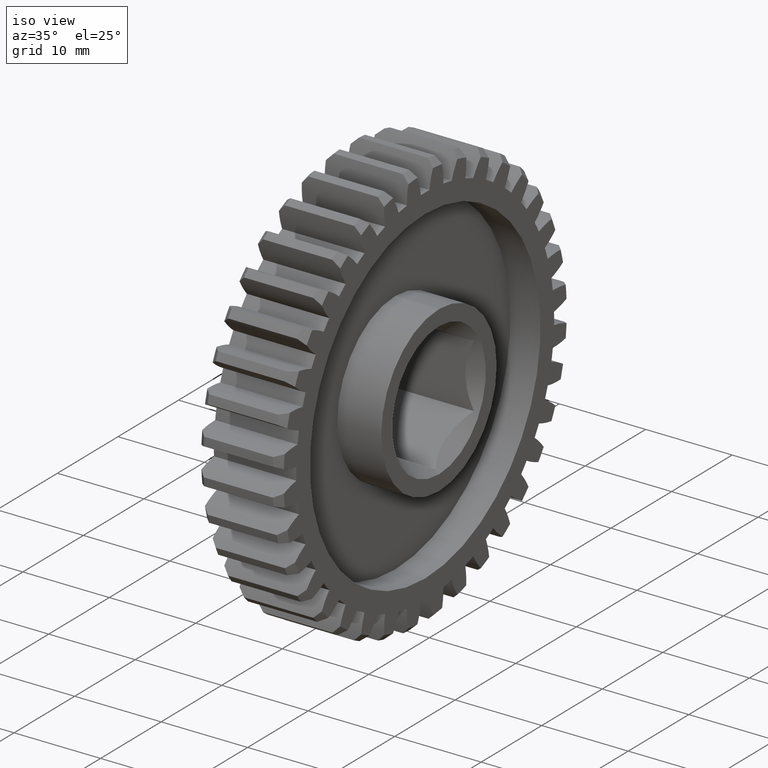
[diagram: clean part render]
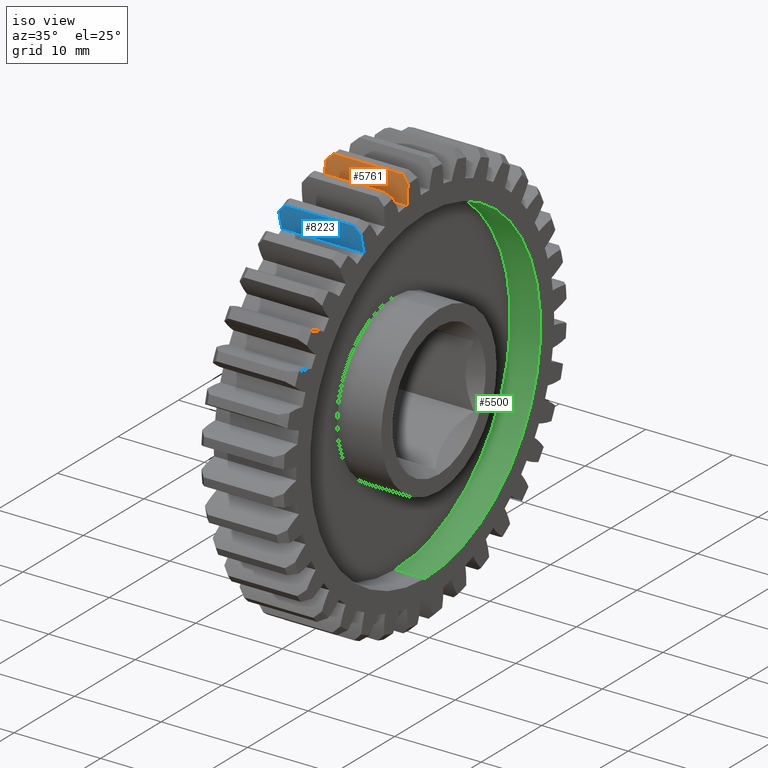
[diagram: same view with three faces highlighted in distinct colors, each labeled with its STEP entity id]
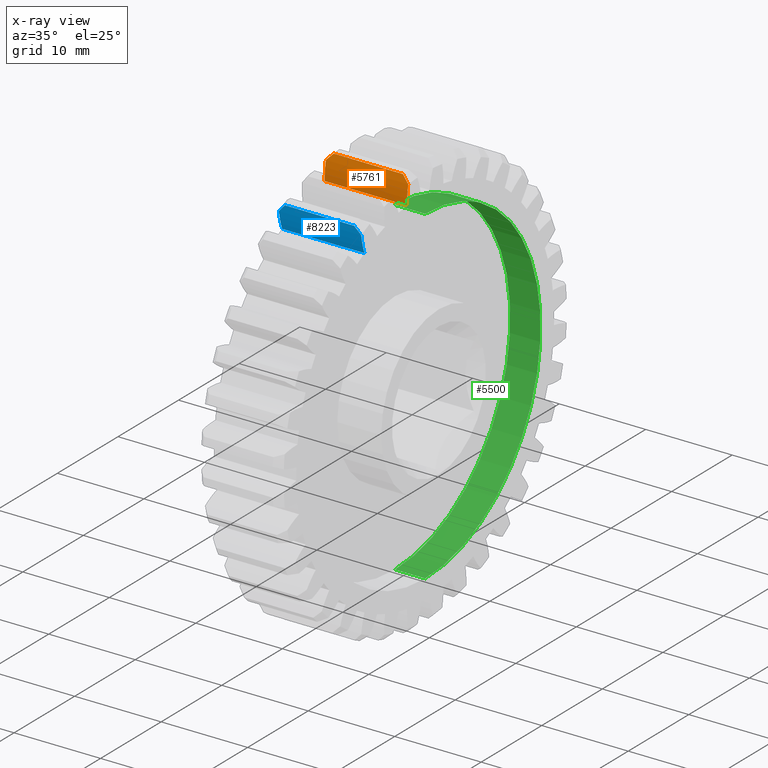
[diagram: x-ray of the same camera — body ghosted, the three highlighted faces saturated]
A machine part, iso view with three faces highlighted in distinct colors.
The next image is the same camera in x-ray (body ghosted, the three faces saturated) — at least one of them is partly hidden behind the body in this view.
Their STEP definitions:

[orange] entity #5761 — the highlighted cylindrical surface (partial cylindrical patch) has radius 9.144 mm, axis along (-1, 0, 0).
#299 = ORIENTED_EDGE ( 'NONE', *, *, #4477, .T. ) ;
#393 = B_SPLINE_CURVE_WITH_KNOTS ( 'NONE', 3,
 ( #2715, #2797, #8612, #8008 ),
 .UNSPECIFIED., .F., .F.,
 ( 4, 4 ),
 ( 3.903127820947815962E-18, 0.001117852206098120249 ),
 .UNSPECIFIED. ) ;
#492 = DIRECTION ( 'NONE',  ( 0.000000000000000000, 0.000000000000000000, 1.000000000000000000 ) ) ;
#592 = CARTESIAN_POINT ( 'NONE',  ( 0.000000000000000000, -0.1101551744072880173, 0.9133815399663494095 ) ) ;
#661 = CARTESIAN_POINT ( 'NONE',  ( 0.3750000000000000555, -0.1182412636767840586, 0.8296161784609298318 ) ) ;
#898 = CARTESIAN_POINT ( 'NONE',  ( 0.3750000000000000555, 0.2416800010159008416, 0.8371450045326488398 ) ) ;
#958 = CARTESIAN_POINT ( 'NONE',  ( 0.3750000000000000555, -0.1101551744072880312, 0.9133815399663496315 ) ) ;
#972 = ORIENTED_EDGE ( 'NONE', *, *, #1091, .T. ) ;
#1017 = DIRECTION ( 'NONE',  ( -1.000000000000000000, 0.000000000000000000, 0.000000000000000000 ) ) ;
#1060 = LINE ( 'NONE', #2322, #3540 ) ;
#1091 = EDGE_CURVE ( 'NONE', #4074, #5995, #1060, .T. ) ;
#1229 = CARTESIAN_POINT ( 'NONE',  ( 0.000000000000000000, -0.1182412636767840586, 0.8296161784609298318 ) ) ;
#1421 = VERTEX_POINT ( 'NONE', #1868 ) ;
#1631 = ORIENTED_EDGE ( 'NONE', *, *, #2276, .T. ) ;
#1755 = DIRECTION ( 'NONE',  ( -1.000000000000000000, 0.000000000000000000, 0.000000000000000000 ) ) ;
#1813 = ORIENTED_EDGE ( 'NONE', *, *, #2444, .T. ) ;
#1868 = CARTESIAN_POINT ( 'NONE',  ( 0.000000000000000000, -0.1101551744072880173, 0.9133815399663494095 ) ) ;
#2276 = EDGE_CURVE ( 'NONE', #6651, #2302, #3125, .T. ) ;
#2302 = VERTEX_POINT ( 'NONE', #4994 ) ;
#2322 = CARTESIAN_POINT ( 'NONE',  ( 0.3750000000000000555, -0.1182412636767840863, 0.8296161784609298318 ) ) ;
#2444 = EDGE_CURVE ( 'NONE', #2302, #1421, #2895, .T. ) ;
#2715 = CARTESIAN_POINT ( 'NONE',  ( 0.3750000000000000555, -0.1101551744072880312, 0.9133815399663496315 ) ) ;
#2797 = CARTESIAN_POINT ( 'NONE',  ( 0.3649188789787016218, -0.1078959033958250824, 0.9238081813152061450 ) ) ;
#2895 = B_SPLINE_CURVE_WITH_KNOTS ( 'NONE', 3,
 ( #3913, #6574, #5361, #592 ),
 .UNSPECIFIED., .F., .F.,
 ( 4, 4 ),
 ( 0.000000000000000000, 0.001117852206098115479 ),
 .UNSPECIFIED. ) ;
#3125 = LINE ( 'NONE', #5754, #3693 ) ;
#3540 = VECTOR ( 'NONE', #3727, 39.37007874015748143 ) ;
#3693 = VECTOR ( 'NONE', #1755, 39.37007874015748143 ) ;
#3727 = DIRECTION ( 'NONE',  ( 1.000000000000000000, -0.000000000000000000, -0.000000000000000000 ) ) ;
#3761 = FACE_OUTER_BOUND ( 'NONE', #4706, .T. ) ;
#3812 = CYLINDRICAL_SURFACE ( 'NONE', #7480, 0.3599999999999999867 ) ;
#3815 = CIRCLE ( 'NONE', #6061, 0.3599999999999999867 ) ;
#3861 = DIRECTION ( 'NONE',  ( -1.000000000000000000, 0.000000000000000000, 0.000000000000000000 ) ) ;
#3913 = CARTESIAN_POINT ( 'NONE',  ( 0.02999999999999954439, -0.1019355103849978045, 0.9445152998880167461 ) ) ;
#4074 = VERTEX_POINT ( 'NONE', #1229 ) ;
#4477 = EDGE_CURVE ( 'NONE', #1421, #4074, #3815, .T. ) ;
#4706 = EDGE_LOOP ( 'NONE', ( #6583, #8195, #1631, #1813, #299, #972 ) ) ;
#4994 = CARTESIAN_POINT ( 'NONE',  ( 0.02999999999999954439, -0.1019355103849978045, 0.9445152998880167461 ) ) ;
#5185 = EDGE_CURVE ( 'NONE', #5995, #7356, #8171, .T. ) ;
#5361 = CARTESIAN_POINT ( 'NONE',  ( 0.01008112102129826368, -0.1078959033958250407, 0.9238081813152061450 ) ) ;
#5378 = AXIS2_PLACEMENT_3D ( 'NONE', #898, #1017, #6835 ) ;
#5754 = CARTESIAN_POINT ( 'NONE',  ( 0.3750000000000000555, -0.1019355103849978461, 0.9445152998880163020 ) ) ;
#5761 = ADVANCED_FACE ( 'NONE', ( #3761 ), #3812, .T. ) ;
#5995 = VERTEX_POINT ( 'NONE', #661 ) ;
#6061 = AXIS2_PLACEMENT_3D ( 'NONE', #7646, #6511, #7956 ) ;
#6511 = DIRECTION ( 'NONE',  ( 1.000000000000000000, -0.000000000000000000, -0.000000000000000000 ) ) ;
#6574 = CARTESIAN_POINT ( 'NONE',  ( 0.02007966345237344533, -0.1051621526473986573, 0.9341891260851690193 ) ) ;
#6583 = ORIENTED_EDGE ( 'NONE', *, *, #5185, .T. ) ;
#6651 = VERTEX_POINT ( 'NONE', #7148 ) ;
#6835 = DIRECTION ( 'NONE',  ( 0.000000000000000000, 0.000000000000000000, 1.000000000000000000 ) ) ;
#7075 = CARTESIAN_POINT ( 'NONE',  ( 0.3750000000000000555, 0.2416800010159008416, 0.8371450045326488398 ) ) ;
#7148 = CARTESIAN_POINT ( 'NONE',  ( 0.3450000000000001954, -0.1019355103849978045, 0.9445152998880167461 ) ) ;
#7237 = EDGE_CURVE ( 'NONE', #7356, #6651, #393, .T. ) ;
#7356 = VERTEX_POINT ( 'NONE', #958 ) ;
#7480 = AXIS2_PLACEMENT_3D ( 'NONE', #7075, #3861, #492 ) ;
#7646 = CARTESIAN_POINT ( 'NONE',  ( 0.000000000000000000, 0.2416800010159008416, 0.8371450045326488398 ) ) ;
#7956 = DIRECTION ( 'NONE',  ( 0.000000000000000000, 1.802260829153506960E-15, 1.000000000000000000 ) ) ;
#8008 = CARTESIAN_POINT ( 'NONE',  ( 0.3450000000000001954, -0.1019355103849978045, 0.9445152998880167461 ) ) ;
#8171 = CIRCLE ( 'NONE', #5378, 0.3599999999999999867 ) ;
#8195 = ORIENTED_EDGE ( 'NONE', *, *, #7237, .T. ) ;
#8612 = CARTESIAN_POINT ( 'NONE',  ( 0.3549203365476263361, -0.1051621526473985602, 0.9341891260851690193 ) ) ;

[blue] entity #8223 — the highlighted cylindrical surface (partial cylindrical patch) has radius 9.144 mm, axis along (-1, 0, 0).
#68 = CARTESIAN_POINT ( 'NONE',  ( 0.3549203365476263361, -0.4183315976256532509, 0.8418830536797704545 ) ) ;
#153 = CARTESIAN_POINT ( 'NONE',  ( 0.02999999999999954439, -0.4188313051458150693, 0.8526900596523061537 ) ) ;
#224 = DIRECTION ( 'NONE',  ( 1.000000000000000000, -0.000000000000000000, -0.000000000000000000 ) ) ;
#225 = CARTESIAN_POINT ( 'NONE',  ( 0.3750000000000000555, -0.4159068897422249500, 0.8206226045296031169 ) ) ;
#341 = DIRECTION ( 'NONE',  ( 1.000000000000000000, -0.000000000000000000, -0.000000000000000000 ) ) ;
#423 = DIRECTION ( 'NONE',  ( -1.000000000000000000, 0.000000000000000000, 0.000000000000000000 ) ) ;
#506 = CARTESIAN_POINT ( 'NONE',  ( 0.3450000000000001954, -0.4188313051458150693, 0.8526900596523061537 ) ) ;
#588 = CIRCLE ( 'NONE', #1559, 0.3599999999999999867 ) ;
#643 = EDGE_LOOP ( 'NONE', ( #937, #2238, #8311, #4198, #8295, #6744 ) ) ;
#669 = VERTEX_POINT ( 'NONE', #947 ) ;
#897 = EDGE_CURVE ( 'NONE', #669, #8053, #6209, .T. ) ;
#937 = ORIENTED_EDGE ( 'NONE', *, *, #3182, .T. ) ;
#947 = CARTESIAN_POINT ( 'NONE',  ( 0.02999999999999954439, -0.4188313051458150693, 0.8526900596523061537 ) ) ;
#959 = CARTESIAN_POINT ( 'NONE',  ( 0.3750000000000000555, -0.3948558872119761198, 0.7391433070345982959 ) ) ;
#1126 = AXIS2_PLACEMENT_3D ( 'NONE', #4484, #3167, #5757 ) ;
#1473 = EDGE_CURVE ( 'NONE', #8053, #2494, #7451, .T. ) ;
#1559 = AXIS2_PLACEMENT_3D ( 'NONE', #3059, #3754, #6342 ) ;
#2070 = CARTESIAN_POINT ( 'NONE',  ( 0.3750000000000000555, -0.4159068897422249500, 0.8206226045296031169 ) ) ;
#2238 = ORIENTED_EDGE ( 'NONE', *, *, #5117, .T. ) ;
#2415 = AXIS2_PLACEMENT_3D ( 'NONE', #3800, #341, #8383 ) ;
#2494 = VERTEX_POINT ( 'NONE', #8193 ) ;
#2820 = CARTESIAN_POINT ( 'NONE',  ( 0.01008112102129823766, -0.4173499908129391089, 0.8311931586598569899 ) ) ;
#3057 = B_SPLINE_CURVE_WITH_KNOTS ( 'NONE', 3,
 ( #2070, #8157, #68, #7374 ),
 .UNSPECIFIED., .F., .F.,
 ( 4, 4 ),
 ( 3.878959614448864246E-18, 0.001117852206098116563 ),
 .UNSPECIFIED. ) ;
#3059 = CARTESIAN_POINT ( 'NONE',  ( 0.3750000000000000555, -0.05921554088845207980, 0.8693184118735222121 ) ) ;
#3151 = EDGE_CURVE ( 'NONE', #2494, #6076, #3710, .T. ) ;
#3167 = DIRECTION ( 'NONE',  ( -1.000000000000000000, 0.000000000000000000, 0.000000000000000000 ) ) ;
#3182 = EDGE_CURVE ( 'NONE', #6076, #4247, #588, .T. ) ;
#3367 = VECTOR ( 'NONE', #423, 39.37007874015748143 ) ;
#3387 = VECTOR ( 'NONE', #224, 39.37007874015748143 ) ;
#3618 = VERTEX_POINT ( 'NONE', #506 ) ;
#3658 = LINE ( 'NONE', #8377, #3367 ) ;
#3710 = LINE ( 'NONE', #959, #3387 ) ;
#3754 = DIRECTION ( 'NONE',  ( -1.000000000000000000, 0.000000000000000000, 0.000000000000000000 ) ) ;
#3800 = CARTESIAN_POINT ( 'NONE',  ( 0.000000000000000000, -0.05921554088845207980, 0.8693184118735222121 ) ) ;
#3828 = CYLINDRICAL_SURFACE ( 'NONE', #1126, 0.3599999999999999867 ) ;
#4198 = ORIENTED_EDGE ( 'NONE', *, *, #897, .T. ) ;
#4247 = VERTEX_POINT ( 'NONE', #225 ) ;
#4436 = FACE_OUTER_BOUND ( 'NONE', #643, .T. ) ;
#4484 = CARTESIAN_POINT ( 'NONE',  ( 0.3750000000000000555, -0.05921554088845207980, 0.8693184118735222121 ) ) ;
#4749 = CARTESIAN_POINT ( 'NONE',  ( 0.02007966345237346614, -0.4183315976256533619, 0.8418830536797703434 ) ) ;
#5117 = EDGE_CURVE ( 'NONE', #4247, #3618, #3057, .T. ) ;
#5757 = DIRECTION ( 'NONE',  ( 0.000000000000000000, 0.000000000000000000, 1.000000000000000000 ) ) ;
#6076 = VERTEX_POINT ( 'NONE', #8136 ) ;
#6209 = B_SPLINE_CURVE_WITH_KNOTS ( 'NONE', 3,
 ( #153, #4749, #2820, #8114 ),
 .UNSPECIFIED., .F., .F.,
 ( 4, 4 ),
 ( 0.000000000000000000, 0.001117852206098112660 ),
 .UNSPECIFIED. ) ;
#6342 = DIRECTION ( 'NONE',  ( 0.000000000000000000, 0.000000000000000000, 1.000000000000000000 ) ) ;
#6744 = ORIENTED_EDGE ( 'NONE', *, *, #3151, .T. ) ;
#7374 = CARTESIAN_POINT ( 'NONE',  ( 0.3450000000000001954, -0.4188313051458150693, 0.8526900596523061537 ) ) ;
#7418 = CARTESIAN_POINT ( 'NONE',  ( 0.000000000000000000, -0.4159068897422249500, 0.8206226045296030058 ) ) ;
#7451 = CIRCLE ( 'NONE', #2415, 0.3599999999999999867 ) ;
#7943 = EDGE_CURVE ( 'NONE', #3618, #669, #3658, .T. ) ;
#8053 = VERTEX_POINT ( 'NONE', #7418 ) ;
#8114 = CARTESIAN_POINT ( 'NONE',  ( 0.000000000000000000, -0.4159068897422249500, 0.8206226045296030058 ) ) ;
#8136 = CARTESIAN_POINT ( 'NONE',  ( 0.3750000000000000555, -0.3948558872119761198, 0.7391433070345986289 ) ) ;
#8157 = CARTESIAN_POINT ( 'NONE',  ( 0.3649188789787016218, -0.4173499908129391089, 0.8311931586598568789 ) ) ;
#8193 = CARTESIAN_POINT ( 'NONE',  ( 0.000000000000000000, -0.3948558872119761198, 0.7391433070345986289 ) ) ;
#8223 = ADVANCED_FACE ( 'NONE', ( #4436 ), #3828, .T. ) ;
#8295 = ORIENTED_EDGE ( 'NONE', *, *, #1473, .T. ) ;
#8311 = ORIENTED_EDGE ( 'NONE', *, *, #7943, .T. ) ;
#8377 = CARTESIAN_POINT ( 'NONE',  ( 0.3750000000000000555, -0.4188313051458149028, 0.8526900596523057096 ) ) ;
#8383 = DIRECTION ( 'NONE',  ( 0.000000000000000000, -1.778546870875171607E-15, 1.000000000000000000 ) ) ;

[green] entity #5500 — the highlighted cylindrical surface (partial cylindrical patch) has radius 19.05 mm, axis along (1, -0, -0).
#799 = DIRECTION ( 'NONE',  ( 1.000000000000000000, -0.000000000000000000, -0.000000000000000000 ) ) ;
#1020 = ORIENTED_EDGE ( 'NONE', *, *, #5222, .F. ) ;
#1208 = EDGE_CURVE ( 'NONE', #3796, #5121, #1298, .T. ) ;
#1278 = CYLINDRICAL_SURFACE ( 'NONE', #6771, 0.7500000000000001110 ) ;
#1298 = CIRCLE ( 'NONE', #3119, 0.7500000000000001110 ) ;
#1391 = LINE ( 'NONE', #7212, #8154 ) ;
#1504 = CARTESIAN_POINT ( 'NONE',  ( 0.3750000000000000555, 9.184850993605150903E-17, 0.7500000000000001110 ) ) ;
#1686 = CARTESIAN_POINT ( 'NONE',  ( 0.2374999999999999889, 0.000000000000000000, 0.000000000000000000 ) ) ;
#1870 = VECTOR ( 'NONE', #6235, 39.37007874015748143 ) ;
#1888 = DIRECTION ( 'NONE',  ( 1.000000000000000000, 0.000000000000000000, 0.000000000000000000 ) ) ;
#1944 = EDGE_LOOP ( 'NONE', ( #1020, #3230, #6730, #2834 ) ) ;
#1976 = DIRECTION ( 'NONE',  ( 0.000000000000000000, 0.000000000000000000, -1.000000000000000000 ) ) ;
#2243 = VERTEX_POINT ( 'NONE', #3036 ) ;
#2795 = VERTEX_POINT ( 'NONE', #4471 ) ;
#2834 = ORIENTED_EDGE ( 'NONE', *, *, #1208, .T. ) ;
#2944 = LINE ( 'NONE', #4953, #1870 ) ;
#3036 = CARTESIAN_POINT ( 'NONE',  ( 0.2374999999999999889, 0.000000000000000000, -0.7500000000000001110 ) ) ;
#3119 = AXIS2_PLACEMENT_3D ( 'NONE', #8621, #1888, #1976 ) ;
#3230 = ORIENTED_EDGE ( 'NONE', *, *, #6193, .F. ) ;
#3505 = CIRCLE ( 'NONE', #3638, 0.7500000000000001110 ) ;
#3638 = AXIS2_PLACEMENT_3D ( 'NONE', #1686, #5199, #5068 ) ;
#3796 = VERTEX_POINT ( 'NONE', #8234 ) ;
#4471 = CARTESIAN_POINT ( 'NONE',  ( 0.2374999999999999889, 9.184850993605150903E-17, 0.7500000000000001110 ) ) ;
#4694 = EDGE_CURVE ( 'NONE', #2243, #3796, #1391, .T. ) ;
#4953 = CARTESIAN_POINT ( 'NONE',  ( 0.2374999999999999889, 9.184850993605150903E-17, 0.7500000000000001110 ) ) ;
#5068 = DIRECTION ( 'NONE',  ( 0.000000000000000000, 0.000000000000000000, -1.000000000000000000 ) ) ;
#5121 = VERTEX_POINT ( 'NONE', #1504 ) ;
#5199 = DIRECTION ( 'NONE',  ( 1.000000000000000000, 0.000000000000000000, 0.000000000000000000 ) ) ;
#5222 = EDGE_CURVE ( 'NONE', #2795, #5121, #2944, .T. ) ;
#5310 = FACE_OUTER_BOUND ( 'NONE', #1944, .T. ) ;
#5500 = ADVANCED_FACE ( 'NONE', ( #5310 ), #1278, .F. ) ;
#6193 = EDGE_CURVE ( 'NONE', #2243, #2795, #3505, .T. ) ;
#6235 = DIRECTION ( 'NONE',  ( 1.000000000000000000, -0.000000000000000000, -0.000000000000000000 ) ) ;
#6730 = ORIENTED_EDGE ( 'NONE', *, *, #4694, .T. ) ;
#6771 = AXIS2_PLACEMENT_3D ( 'NONE', #8620, #799, #8054 ) ;
#7212 = CARTESIAN_POINT ( 'NONE',  ( 0.2374999999999999889, 0.000000000000000000, -0.7500000000000001110 ) ) ;
#8054 = DIRECTION ( 'NONE',  ( 0.000000000000000000, 0.000000000000000000, -1.000000000000000000 ) ) ;
#8154 = VECTOR ( 'NONE', #8651, 39.37007874015748143 ) ;
#8234 = CARTESIAN_POINT ( 'NONE',  ( 0.3750000000000000555, 0.000000000000000000, -0.7500000000000001110 ) ) ;
#8620 = CARTESIAN_POINT ( 'NONE',  ( 0.2374999999999999889, 0.000000000000000000, 0.000000000000000000 ) ) ;
#8621 = CARTESIAN_POINT ( 'NONE',  ( 0.3750000000000000555, 0.000000000000000000, 0.000000000000000000 ) ) ;
#8651 = DIRECTION ( 'NONE',  ( 1.000000000000000000, -0.000000000000000000, -0.000000000000000000 ) ) ;